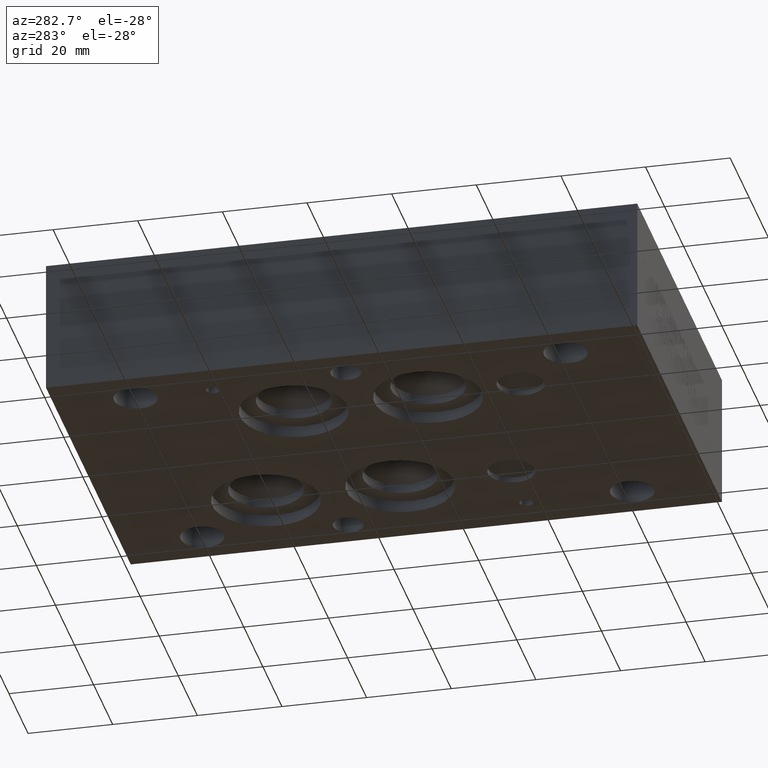
[diagram: clean part render]
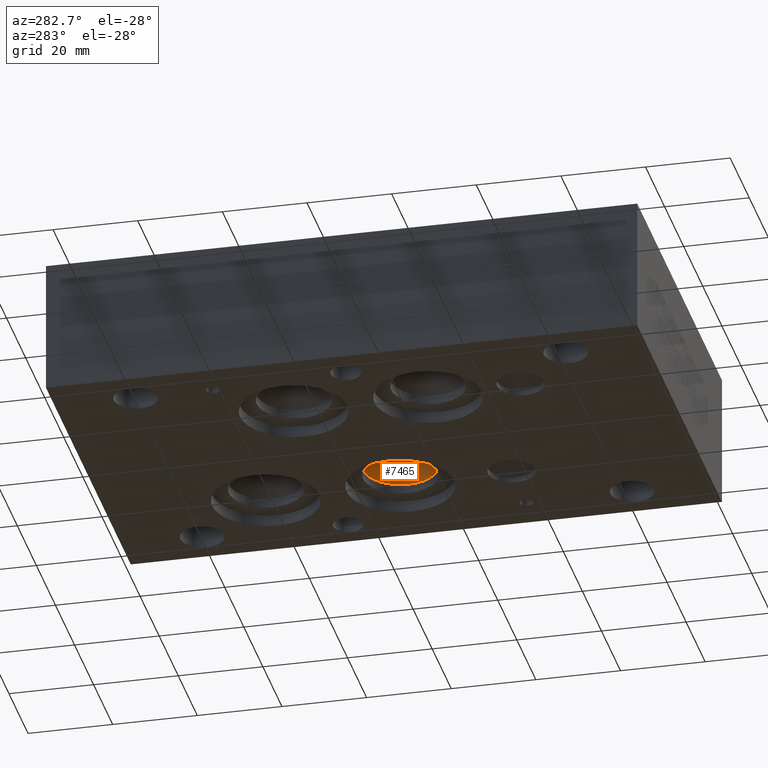
[diagram: same view with one face highlighted and labeled with its STEP entity id]
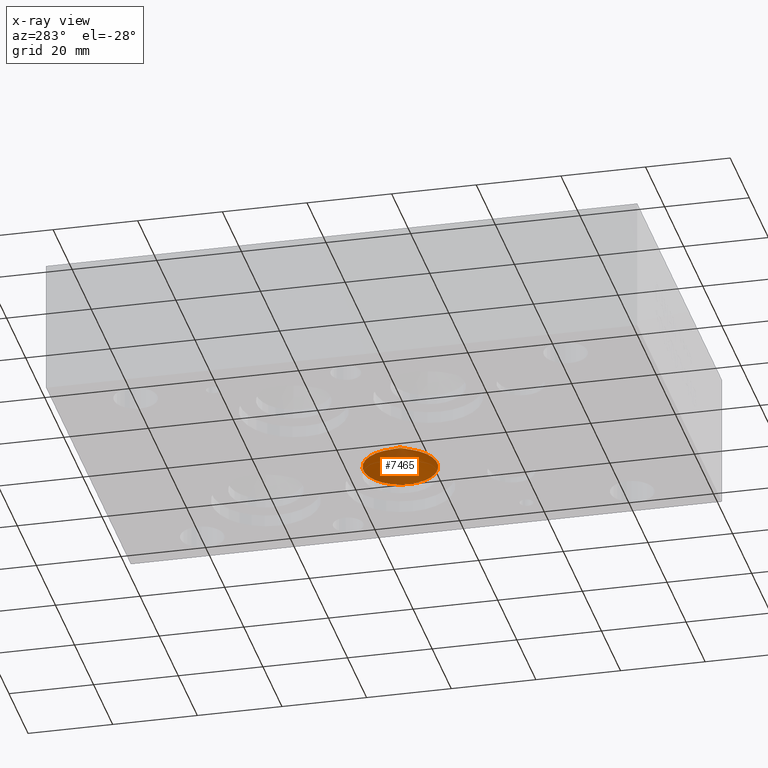
[diagram: x-ray of the same camera — body ghosted, the highlighted face saturated]
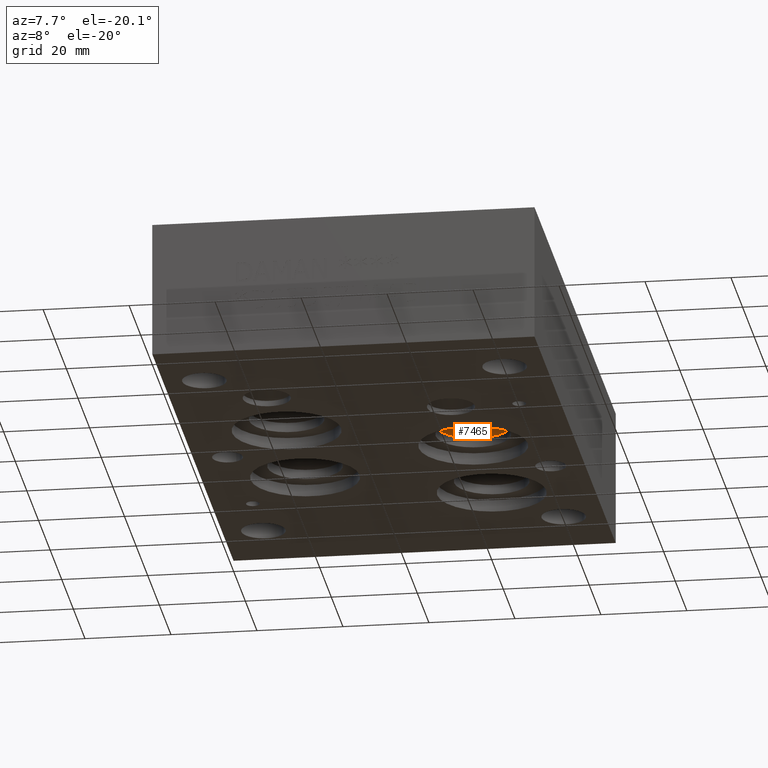
[diagram: same view with one face highlighted and labeled with its STEP entity id]
A machine part, auxiliary view. The second image highlights one B-rep face of the part: STEP entity #7465.
The next image is the same camera in x-ray: the body ghosted, the highlighted face saturated — about 13% of this face is hidden behind the body in this view.
A second angle (auxiliary view) of the same face is appended — the face is thin or edge-on in the first view.
In plain terms, the highlighted conical surface has half-angle 60 deg.
Its self-contained STEP definition (entity closure, byte-faithful):
#15=CONICAL_SURFACE('',#7802,4.3688,1.0471975511966);
#37=CIRCLE('',#7803,8.7376);
#791=FACE_OUTER_BOUND('',#1216,.T.);
#1216=EDGE_LOOP('',(#6290,#6291,#6292));
#2038=LINE('',#12346,#2805);
#2805=VECTOR('',#9157,4.3688);
#3450=VERTEX_POINT('',#12343);
#3451=VERTEX_POINT('',#12345);
#4419=EDGE_CURVE('',#3450,#3450,#37,.T.);
#4420=EDGE_CURVE('',#3450,#3451,#2038,.T.);
#6290=ORIENTED_EDGE('',*,*,#4419,.T.);
#6291=ORIENTED_EDGE('',*,*,#4420,.T.);
#6292=ORIENTED_EDGE('',*,*,#4420,.F.);
#7465=ADVANCED_FACE('',(#791),#15,.F.);
#7802=AXIS2_PLACEMENT_3D('',#12342,#9153,#9154);
#7803=AXIS2_PLACEMENT_3D('',#12344,#9155,#9156);
#9153=DIRECTION('center_axis',(0.,0.,-1.));
#9154=DIRECTION('ref_axis',(1.,0.,0.));
#9155=DIRECTION('center_axis',(0.,0.,-1.));
#9156=DIRECTION('ref_axis',(1.,0.,0.));
#9157=DIRECTION('',(0.866025403784439,-1.06057523872491E-16,0.5));
#12342=CARTESIAN_POINT('Origin',(65.1002,70.6374,7.56698785603564));
#12343=CARTESIAN_POINT('',(56.3626,70.6374,5.04466));
#12344=CARTESIAN_POINT('Origin',(65.1002,70.6374,5.04466));
#12345=CARTESIAN_POINT('',(65.1002,70.6374,10.0893157120713));
#12346=CARTESIAN_POINT('',(60.7314,70.6374,7.56698785603564));